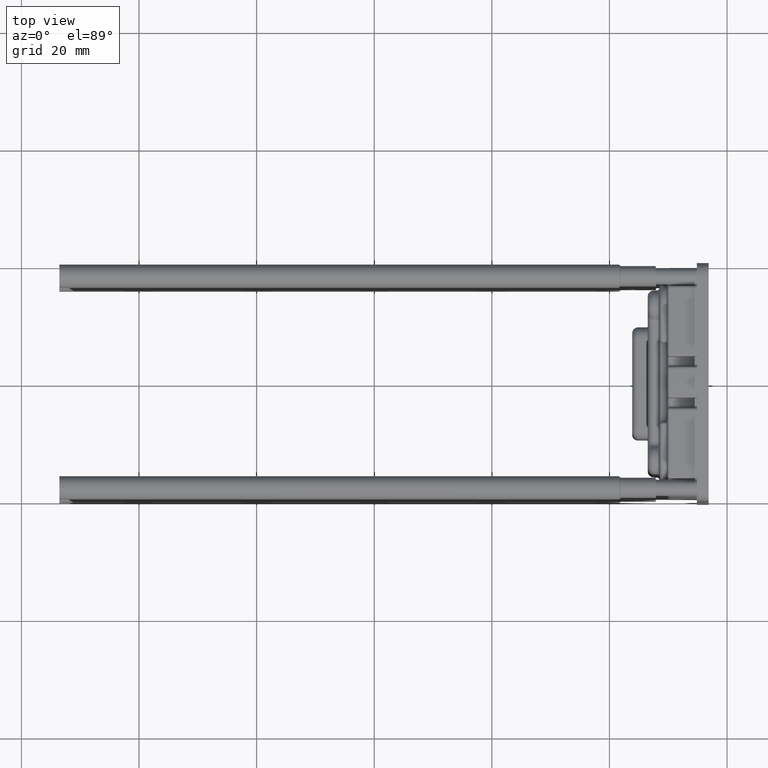
[diagram: clean part render]
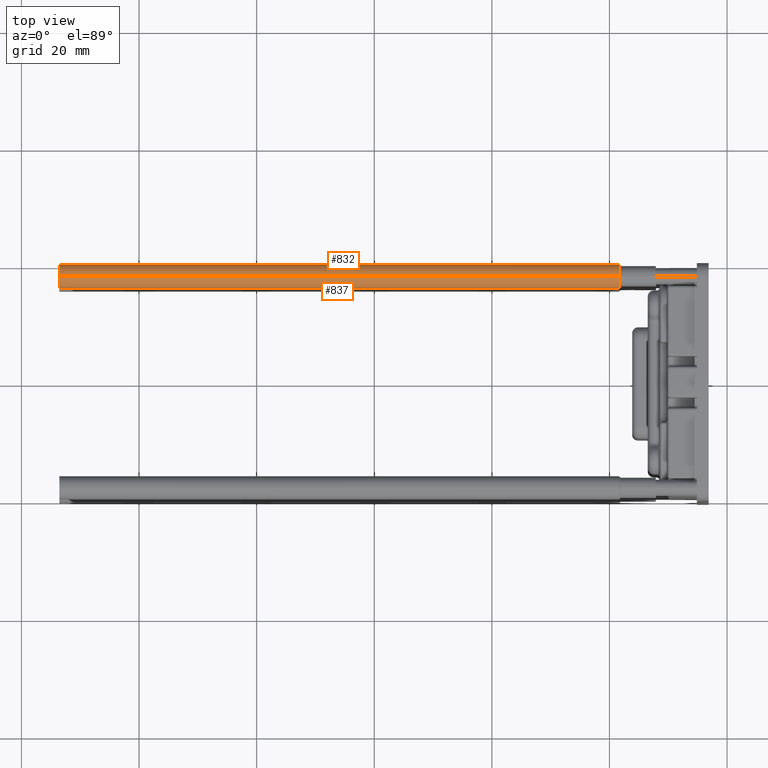
[diagram: same view with one multi-face feature highlighted, each face labeled with its STEP entity id]
A machine part, top view. The highlighted faces form ONE feature: a constant-radius fillet chain: 2 tangent blend faces with common blend radius 2 mm. The faces share edges in the B-rep.
Their STEP definitions:
[1] entity #832 (Cylinder):
#457=CYLINDRICAL_SURFACE('',#8854,2.00000000000006);
#832=ADVANCED_FACE('',(#1262),#457,.T.);
#1262=FACE_OUTER_BOUND('',#1715,.F.);
#1715=EDGE_LOOP('',(#3449,#3450,#3451,#3452));
#3449=ORIENTED_EDGE('',*,*,#6315,.F.);
#3450=ORIENTED_EDGE('',*,*,#6323,.F.);
#3451=ORIENTED_EDGE('',*,*,#6316,.T.);
#3452=ORIENTED_EDGE('',*,*,#6324,.T.);
#5303=CIRCLE('',#8424,2.00000000000006);
#5304=CIRCLE('',#8425,2.00000000000006);
#6315=EDGE_CURVE('',#7325,#7324,#5303,.T.);
#6316=EDGE_CURVE('',#7323,#7322,#5304,.T.);
#6323=EDGE_CURVE('',#7323,#7325,#6872,.T.);
#6324=EDGE_CURVE('',#7322,#7324,#6873,.T.);
#6872=LINE('',#12942,#7320);
#6873=LINE('',#12943,#7321);
#7320=VECTOR('',#10351,95.1625749117952);
#7321=VECTOR('',#10352,95.1625749117952);
#7322=VERTEX_POINT('',#11421);
#7323=VERTEX_POINT('',#11422);
#7324=VERTEX_POINT('',#11423);
#7325=VERTEX_POINT('',#11424);
#8424=AXIS2_PLACEMENT_3D('',#12934,#10341,#10342);
#8425=AXIS2_PLACEMENT_3D('',#12935,#10343,#10344);
#8854=AXIS2_PLACEMENT_3D('',#13372,#11209,#11210);
#10341=DIRECTION('',(-1.,0.,0.));
#10342=DIRECTION('',(0.,0.,1.));
#10343=DIRECTION('',(-1.,0.,0.));
#10344=DIRECTION('',(0.,0.,1.));
#10351=DIRECTION('',(1.,0.,0.));
#10352=DIRECTION('',(1.,0.,0.));
#11209=DIRECTION('',(-1.,0.,0.));
#11210=DIRECTION('',(0.,0.,1.));
#11421=CARTESIAN_POINT('',(-33.5475751670301,-181.999995498775,52.0000072097392));
#11422=CARTESIAN_POINT('',(-33.5475751670301,-181.999995498775,56.0000072097393));
#11423=CARTESIAN_POINT('',(61.6149997447651,-181.999995498775,52.0000072097392));
#11424=CARTESIAN_POINT('',(61.6149997447651,-181.999995498775,56.0000072097393));
#12934=CARTESIAN_POINT('',(61.6149997447651,-181.999995498775,54.0000072097393));
#12935=CARTESIAN_POINT('',(-33.5475751670301,-181.999995498775,54.0000072097392));
#12942=CARTESIAN_POINT('',(-33.5475751670301,-181.999995498775,56.0000072097393));
#12943=CARTESIAN_POINT('',(-33.5475751670301,-181.999995498775,52.0000072097392));
#13372=CARTESIAN_POINT('',(-33.5475751670301,-181.999995498775,54.0000072097392));
[2] entity #837 (Cylinder):
#460=CYLINDRICAL_SURFACE('',#8859,2.00000000000006);
#837=ADVANCED_FACE('',(#1267),#460,.T.);
#1267=FACE_OUTER_BOUND('',#1721,.F.);
#1721=EDGE_LOOP('',(#3469,#3470,#3471,#3472));
#3469=ORIENTED_EDGE('',*,*,#6323,.T.);
#3470=ORIENTED_EDGE('',*,*,#6328,.F.);
#3471=ORIENTED_EDGE('',*,*,#6324,.F.);
#3472=ORIENTED_EDGE('',*,*,#6329,.T.);
#5308=CIRCLE('',#8429,2.00000000000006);
#5309=CIRCLE('',#8430,2.00000000000006);
#6323=EDGE_CURVE('',#7323,#7325,#6872,.T.);
#6324=EDGE_CURVE('',#7322,#7324,#6873,.T.);
#6328=EDGE_CURVE('',#7324,#7325,#5308,.T.);
#6329=EDGE_CURVE('',#7322,#7323,#5309,.T.);
#6872=LINE('',#12942,#7320);
#6873=LINE('',#12943,#7321);
#7320=VECTOR('',#10351,95.1625749117952);
#7321=VECTOR('',#10352,95.1625749117952);
#7322=VERTEX_POINT('',#11421);
#7323=VERTEX_POINT('',#11422);
#7324=VERTEX_POINT('',#11423);
#7325=VERTEX_POINT('',#11424);
#8429=AXIS2_PLACEMENT_3D('',#12947,#10359,#10360);
#8430=AXIS2_PLACEMENT_3D('',#12948,#10361,#10362);
#8859=AXIS2_PLACEMENT_3D('',#13377,#11219,#11220);
#10351=DIRECTION('',(1.,0.,0.));
#10352=DIRECTION('',(1.,0.,0.));
#10359=DIRECTION('',(-1.,0.,0.));
#10360=DIRECTION('',(0.,0.,-1.));
#10361=DIRECTION('',(-1.,0.,0.));
#10362=DIRECTION('',(0.,0.,-1.));
#11219=DIRECTION('',(-1.,0.,0.));
#11220=DIRECTION('',(0.,0.,-1.));
#11421=CARTESIAN_POINT('',(-33.5475751670301,-181.999995498775,52.0000072097392));
#11422=CARTESIAN_POINT('',(-33.5475751670301,-181.999995498775,56.0000072097393));
#11423=CARTESIAN_POINT('',(61.6149997447651,-181.999995498775,52.0000072097392));
#11424=CARTESIAN_POINT('',(61.6149997447651,-181.999995498775,56.0000072097393));
#12942=CARTESIAN_POINT('',(-33.5475751670301,-181.999995498775,56.0000072097393));
#12943=CARTESIAN_POINT('',(-33.5475751670301,-181.999995498775,52.0000072097392));
#12947=CARTESIAN_POINT('',(61.6149997447651,-181.999995498775,54.0000072097393));
#12948=CARTESIAN_POINT('',(-33.5475751670301,-181.999995498775,54.0000072097392));
#13377=CARTESIAN_POINT('',(-33.5475751670301,-181.999995498775,54.0000072097392));